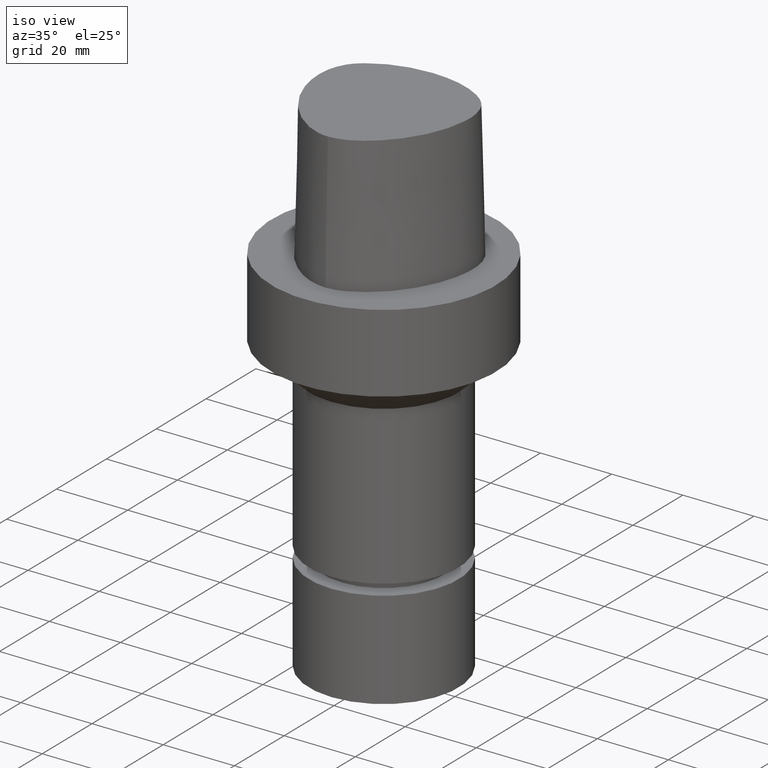
[diagram: clean part render]
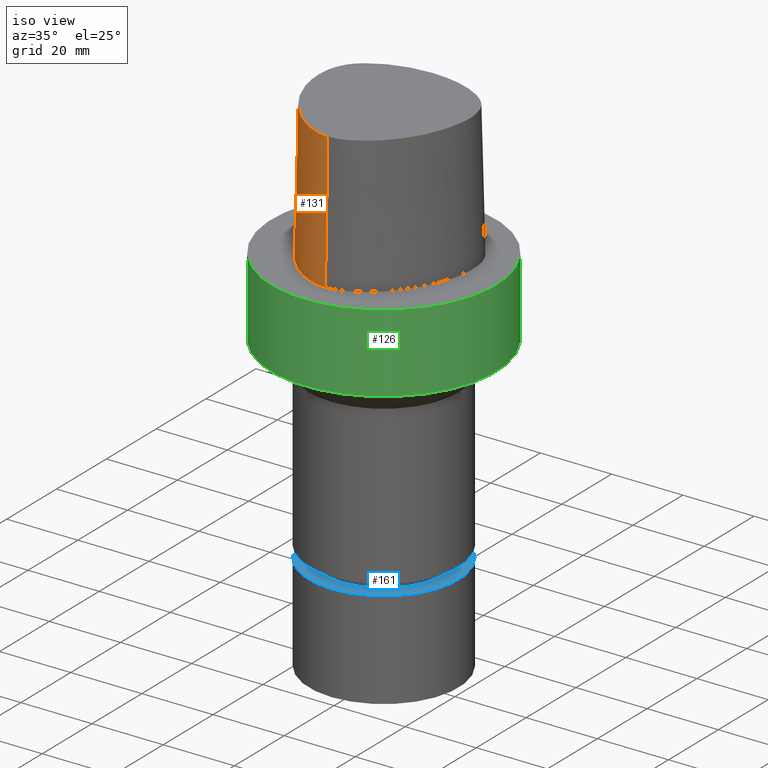
[diagram: same view with three faces highlighted in distinct colors, each labeled with its STEP entity id]
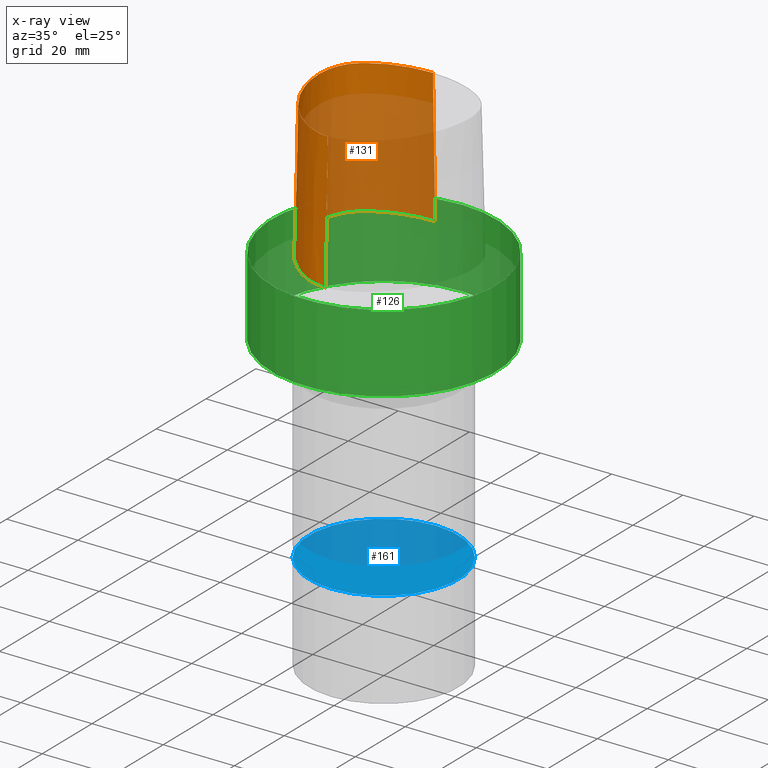
[diagram: x-ray of the same camera — body ghosted, the three highlighted faces saturated]
A machine part, iso view with three faces highlighted in distinct colors.
The next image is the same camera in x-ray (body ghosted, the three faces saturated) — at least one of them is partly hidden behind the body in this view.
Their STEP definitions:

[orange] entity #131 — the highlighted face is a freeform B-spline surface patch.
#73=EDGE_CURVE('Unnamed[1]',#192,#193,#194,.T.);
#108=EDGE_CURVE('Unnamed[1]',#193,#245,#246,.T.);
#131=ADVANCED_FACE('Unnamed[1]',(#280),#281,.T.);
#146=EDGE_CURVE('Unnamed[1]',#220,#245,#301,.T.);
#153=EDGE_CURVE('Unnamed[1]',#220,#192,#311,.T.);
#192=VERTEX_POINT('',#350);
#193=VERTEX_POINT('',#351);
#194=LINE('',#352,#353);
#220=VERTEX_POINT('',#386);
#245=VERTEX_POINT('',#501);
#246=B_SPLINE_CURVE_WITH_KNOTS('',3,(#502,#503,#504,#505,#506,#507,#508,#509,#510,#511,#512,#513,#514,#515,#516,#517,#518,#519),.UNSPECIFIED.,.F.,.F.,(4,1,1,1,1,1,1,1,1,2,1,1,1,1,4),(-6.6151339308743,-6.20168806019465,-5.78824218951501,-5.37479631883537,-4.96135044815572,-4.13445870679644,-3.30756696543715,-2.89412109475751,-2.48067522407786,-2.06722935339822,-1.65378348271857,-1.24033761203893,-0.826891741359287,-0.413445870679644,0.0),.UNSPECIFIED.);
#280=FACE_OUTER_BOUND('',#562,.T.);
#281=B_SPLINE_SURFACE_WITH_KNOTS('',3,3,((#563,#564,#565,#566),(#567,#568,#569,#570),(#571,#572,#573,#574),(#575,#576,#577,#578),(#579,#580,#581,#582),(#583,#584,#585,#586),(#587,#588,#589,#590),(#591,#592,#593,#594),(#595,#596,#597,#598),(#599,#600,#601,#602),(#603,#604,#605,#606),(#607,#608,#609,#610),(#611,#612,#613,#614),(#615,#616,#617,#618),(#619,#620,#621,#622),(#623,#624,#625,#626),(#627,#628,#629,#630),(#631,#632,#633,#634)),.UNSPECIFIED.,.F.,.F.,.F.,(4,1,1,1,1,1,1,1,1,2,1,1,1,1,4),(4,4),(-6.6151339308743,-6.20168806019465,-5.78824218951501,-5.37479631883537,-4.96135044815572,-4.13445870679644,-3.30756696543715,-2.89412109475751,-2.48067522407786,-2.06722935339822,-1.65378348271857,-1.24033761203893,-0.826891741359287,-0.413445870679644,0.0),(-3.8,0.0),.UNSPECIFIED.);
#301=LINE('',#659,#660);
#311=B_SPLINE_CURVE_WITH_KNOTS('',3,(#673,#674,#675,#676,#677,#678,#679,#680,#681,#682,#683,#684,#685,#686,#687,#688),.UNSPECIFIED.,.F.,.F.,(4,1,1,1,1,1,1,1,1,1,1,1,1,4),(0.0,0.447924670568964,0.9388024242536,1.50591409090711,2.07314340012323,2.72424957442464,3.2253501842849,3.80982102049476,4.34867996267067,4.85900173381144,5.37972031856977,6.03459825488646,6.61113557741484,6.61513393087395),.UNSPECIFIED.);
#350=CARTESIAN_POINT('',(0.038736923393866,-22.5191997536361,38.0));
#351=CARTESIAN_POINT('',(0.04359356758149,-23.4691235068931,7.78075697532443E-032));
#352=CARTESIAN_POINT('',(0.038736923393866,-22.5191997536361,38.0));
#353=VECTOR('',#737,38.0118715498723);
#386=CARTESIAN_POINT('',(-0.001218547003662,19.7276821925089,38.0));
#501=CARTESIAN_POINT('',(-0.045171994691285,20.6766009553285,1.6755590516169E-031));
#502=CARTESIAN_POINT('',(0.04359356758149,-23.4691235068931,7.78075697532443E-032));
#503=CARTESIAN_POINT('',(-1.4714994713963,-23.4767895315797,2.46519032881566E-032));
#504=CARTESIAN_POINT('',(-4.43923476371401,-22.821149804767,-4.93038065763132E-032));
#505=CARTESIAN_POINT('',(-8.35043230079961,-20.8000751253325,-9.86076131526265E-032));
#506=CARTESIAN_POINT('',(-11.744900222602,-18.1556117874078,-1.97215226305253E-031));
#507=CARTESIAN_POINT('',(-15.6989602501314,-14.0406306929147,-1.97215226305253E-031));
#508=CARTESIAN_POINT('',(-19.5352875070682,-8.00624990770787,1.97215226305253E-031));
#509=CARTESIAN_POINT('',(-21.7205626190491,-1.16081708945282,0.0));
#510=CARTESIAN_POINT('',(-22.2486616783342,4.54965558738736,0.0));
#511=CARTESIAN_POINT('',(-21.6646421256468,9.00229539124618,0.0));
#512=CARTESIAN_POINT('',(-20.3945635471922,11.7780544971003,0.0));
#513=CARTESIAN_POINT('',(-18.5925528034471,14.1980602922581,0.0));
#514=CARTESIAN_POINT('',(-16.3226584122258,16.1777748720707,0.0));
#515=CARTESIAN_POINT('',(-12.5076407874579,18.2524201541303,9.86076131526265E-032));
#516=CARTESIAN_POINT('',(-8.46776192107786,19.679114377952,9.86076131526265E-032));
#517=CARTESIAN_POINT('',(-4.23043497193604,20.487781597334,1.97215226305253E-031));
#518=CARTESIAN_POINT('',(-1.42313094248379,20.6127745766442,1.10933564796705E-031));
#519=CARTESIAN_POINT('',(-0.045171994691285,20.6766009553285,1.6755590516169E-031));
#562=EDGE_LOOP('',(#826,#827,#828,#829));
#563=CARTESIAN_POINT('',(0.038736923393866,-22.5191997536361,38.0));
#564=CARTESIAN_POINT('',(0.04035580478973,-22.8358410047159,25.3333333333066));
#565=CARTESIAN_POINT('',(0.041974686185626,-23.1524822558133,12.6666666666934));
#566=CARTESIAN_POINT('',(0.04359356758149,-23.4691235068931,7.78075697532443E-032));
#567=CARTESIAN_POINT('',(-1.33786123484754,-22.5261650259856,38.0));
#568=CARTESIAN_POINT('',(-1.38240731367927,-22.8430399310626,25.3333333333066));
#569=CARTESIAN_POINT('',(-1.42695339249092,-23.1599147815484,12.6666666666934));
#570=CARTESIAN_POINT('',(-1.4714994713963,-23.4767895315797,2.46519032881566E-032));
#571=CARTESIAN_POINT('',(-4.08909358431842,-21.9268839879558,38.0));
#572=CARTESIAN_POINT('',(-4.20580731135515,-22.2249725500078,25.3333333333066));
#573=CARTESIAN_POINT('',(-4.32252104640446,-22.5230611651922,12.6666666666934));
#574=CARTESIAN_POINT('',(-4.43923476371401,-22.821149804767,-4.93038065763132E-032));
#575=CARTESIAN_POINT('',(-7.8333083619947,-19.9973514861616,38.0));
#576=CARTESIAN_POINT('',(-8.00568301809614,-20.2649260859405,25.3333333333066));
#577=CARTESIAN_POINT('',(-8.1780576640789,-20.532500564315,12.6666666666934));
#578=CARTESIAN_POINT('',(-8.35043230079961,-20.8000751253325,-9.86076131526265E-032));
#579=CARTESIAN_POINT('',(-11.1035071147626,-17.450554957873,38.0));
#580=CARTESIAN_POINT('',(-11.3173048160562,-17.6855739222454,25.3333333333066));
#581=CARTESIAN_POINT('',(-11.5311025116181,-17.9205928617968,12.6666666666934));
#582=CARTESIAN_POINT('',(-11.744900222602,-18.1556117874078,-1.97215226305253E-031));
#583=CARTESIAN_POINT('',(-14.9379535189057,-13.461132049697,38.0));
#584=CARTESIAN_POINT('',(-15.191622410671,-13.6542981711372,25.3333333333066));
#585=CARTESIAN_POINT('',(-15.4452913389853,-13.8474645327131,12.6666666666934));
#586=CARTESIAN_POINT('',(-15.6989602501314,-14.0406306929147,-1.97215226305253E-031));
#587=CARTESIAN_POINT('',(-18.6681263017223,-7.59391757463204,38.0));
#588=CARTESIAN_POINT('',(-18.9571800800711,-7.73136168081928,25.3333333333066));
#589=CARTESIAN_POINT('',(-19.2462337287194,-7.86880572399774,12.6666666666934));
#590=CARTESIAN_POINT('',(-19.5352875070682,-8.00624990770787,1.97215226305253E-031));
#591=CARTESIAN_POINT('',(-20.7857899858339,-0.952862819790525,38.0));
#592=CARTESIAN_POINT('',(-21.0973808305434,-1.02218087467418,25.3333333333066));
#593=CARTESIAN_POINT('',(-21.408971677436,-1.09149899580772,12.6666666666934));
#594=CARTESIAN_POINT('',(-21.7205626190491,-1.16081708945282,0.0));
#595=CARTESIAN_POINT('',(-21.2911760556836,4.5469215763113,38.0));
#596=CARTESIAN_POINT('',(-21.610337904926,4.54783292082248,25.3333333333066));
#597=CARTESIAN_POINT('',(-21.9294998290918,4.54874426225691,12.6666666666934));
#598=CARTESIAN_POINT('',(-22.2486616783342,4.54965558738736,0.0));
#599=CARTESIAN_POINT('',(-20.7345309521958,8.74909381391006,38.0));
#600=CARTESIAN_POINT('',(-21.0445680426217,8.83349432450556,25.3333333333066));
#601=CARTESIAN_POINT('',(-21.3546050933631,8.91789488065068,12.6666666666934));
#602=CARTESIAN_POINT('',(-21.6646421256468,9.00229539124618,0.0));
#603=CARTESIAN_POINT('',(-19.5531512296439,11.3174844040833,38.0));
#604=CARTESIAN_POINT('',(-19.8336219699984,11.4710077674213,25.3333333333066));
#605=CARTESIAN_POINT('',(-20.1140927680763,11.6245311337623,12.6666666666934));
#606=CARTESIAN_POINT('',(-20.3945635471922,11.7780544971003,0.0));
#607=CARTESIAN_POINT('',(-17.9100913688793,13.524027510437,38.0));
#608=CARTESIAN_POINT('',(-18.1375785458768,13.7487051053655,25.3333333333066));
#609=CARTESIAN_POINT('',(-18.365065665211,13.9733826973296,12.6666666666934));
#610=CARTESIAN_POINT('',(-18.5925528034471,14.1980602922581,0.0));
#611=CARTESIAN_POINT('',(-15.7996349656398,15.3762170634413,38.0));
#612=CARTESIAN_POINT('',(-15.9739761051783,15.6434029846179,25.3333333333066));
#613=CARTESIAN_POINT('',(-16.1483172726872,15.9105889315134,12.6666666666934));
#614=CARTESIAN_POINT('',(-16.3226584122258,16.1777748720707,0.0));
#615=CARTESIAN_POINT('',(-12.1175640002064,17.3825162484012,38.0));
#616=CARTESIAN_POINT('',(-12.2475895903055,17.6724842099619,25.3333333333066));
#617=CARTESIAN_POINT('',(-12.3776152070492,17.9624521925696,12.6666666666934));
#618=CARTESIAN_POINT('',(-12.5076407874579,18.2524201541303,9.86076131526265E-032));
#619=CARTESIAN_POINT('',(-8.21761151654222,18.7588585989994,38.0));
#620=CARTESIAN_POINT('',(-8.30099497910627,19.0656105427881,25.3333333333066));
#621=CARTESIAN_POINT('',(-8.38437843913309,19.3723624535439,12.6666666666934));
#622=CARTESIAN_POINT('',(-8.46776192107786,19.679114377952,9.86076131526265E-032));
#623=CARTESIAN_POINT('',(-4.13466093881225,19.5396850837055,38.0));
#624=CARTESIAN_POINT('',(-4.16658562115465,19.8557172636973,25.3333333333066));
#625=CARTESIAN_POINT('',(-4.19851029939059,20.1717494367229,12.6666666666934));
#626=CARTESIAN_POINT('',(-4.23043497193604,20.487781597334,1.97215226305253E-031));
#627=CARTESIAN_POINT('',(-1.37917220403684,19.6638560588908,38.0));
#628=CARTESIAN_POINT('',(-1.39382511685176,19.98016223565,25.3333333333066));
#629=CARTESIAN_POINT('',(-1.40847802945569,20.296468399885,12.6666666666934));
#630=CARTESIAN_POINT('',(-1.42313094248379,20.6127745766442,1.10933564796705E-031));
#631=CARTESIAN_POINT('',(-0.001218547003662,19.7276821925089,38.0));
#632=CARTESIAN_POINT('',(-0.015869696232855,20.043988446791,25.3333333333066));
#633=CARTESIAN_POINT('',(-0.030520845462092,20.3602947010464,12.6666666666934));
#634=CARTESIAN_POINT('',(-0.045171994691285,20.6766009553285,1.6755590516169E-031));
#659=CARTESIAN_POINT('',(-0.001218547003662,19.7276821925089,38.0));
#660=VECTOR('',#848,38.0118715498723);
#673=CARTESIAN_POINT('',(-0.001218547003662,19.7276821925089,38.0));
#674=CARTESIAN_POINT('',(-1.49408492138443,19.6585333605309,38.0));
#675=CARTESIAN_POINT('',(-4.62297391420352,19.513604770166,38.0));
#676=CARTESIAN_POINT('',(-9.56160616752212,18.4291575730197,38.0));
#677=CARTESIAN_POINT('',(-14.5427684976927,16.2697452580488,38.0));
#678=CARTESIAN_POINT('',(-19.4315563551602,12.5302108980807,38.0));
#679=CARTESIAN_POINT('',(-21.306358833612,6.76352894547076,38.0));
#680=CARTESIAN_POINT('',(-21.0724946936277,0.957075236984038,38.0));
#681=CARTESIAN_POINT('',(-19.7876470880144,-4.34628503581652,38.0));
#682=CARTESIAN_POINT('',(-17.5396999600095,-9.33314444653089,38.0));
#683=CARTESIAN_POINT('',(-14.645447733857,-13.7185760345629,38.0));
#684=CARTESIAN_POINT('',(-10.7996726536643,-17.856257282137,38.0));
#685=CARTESIAN_POINT('',(-6.00479510196376,-21.2687382067675,38.0));
#686=CARTESIAN_POINT('',(-1.90747171908525,-22.5250621415864,38.0));
#687=CARTESIAN_POINT('',(0.025424107066464,-22.5192678176378,38.0));
#688=CARTESIAN_POINT('',(0.038736923394311,-22.519199753636,38.0));
#737=DIRECTION('',(0.000127766510556,-0.024990186342461,-0.999687688361864));
#826=ORIENTED_EDGE('',*,*,#108,.F.);
#827=ORIENTED_EDGE('',*,*,#73,.F.);
#828=ORIENTED_EDGE('',*,*,#153,.F.);
#829=ORIENTED_EDGE('',*,*,#146,.T.);
#848=DIRECTION('',(-0.001156308434589,0.02496374748543,-0.999687688361864));

[blue] entity #161 — the highlighted planar face has unit normal (-0, -0, 1).
#75=EDGE_CURVE('Unnamed[1]',#196,#196,#197,.T.);
#161=ADVANCED_FACE('Unnamed[1]',(#322),#323,.T.);
#196=VERTEX_POINT('',#356);
#197=CIRCLE('',#357,21.0);
#322=FACE_OUTER_BOUND('',#702,.T.);
#323=PLANE('',#703);
#356=CARTESIAN_POINT('',(4.74550634669599E-015,21.0,-77.5));
#357=AXIS2_PLACEMENT_3D('',#738,#739,#740);
#702=EDGE_LOOP('',(#868));
#703=AXIS2_PLACEMENT_3D('',#869,#870,#871);
#738=CARTESIAN_POINT('',(4.74550634669599E-015,9.49101269339199E-015,-77.5));
#739=DIRECTION('',(6.12323399573677E-017,1.22464679914735E-016,-1.0));
#740=DIRECTION('',(-1.23259516440783E-032,1.0,1.22464679914735E-016));
#868=ORIENTED_EDGE('',*,*,#75,.F.);
#869=CARTESIAN_POINT('',(4.74550634669599E-015,10.5,-77.5));
#870=DIRECTION('',(-6.12323399573677E-017,-1.22464679914735E-016,1.0));
#871=DIRECTION('',(1.23259516440783E-032,-1.0,-1.22464679914735E-016));

[green] entity #126 — the highlighted cylindrical surface (bore or boss wall) has radius 31.5 mm, axis along (0, 0, -1).
#83=EDGE_CURVE('Unnamed[1]',#209,#209,#210,.T.);
#115=EDGE_CURVE('Unnamed[1]',#256,#256,#257,.T.);
#126=ADVANCED_FACE('Unnamed[1]',(#272,#273),#274,.T.);
#209=VERTEX_POINT('',#372);
#210=CIRCLE('',#373,31.5);
#256=VERTEX_POINT('',#532);
#257=CIRCLE('',#533,31.5);
#272=FACE_BOUND('',#552,.T.);
#273=FACE_BOUND('',#553,.T.);
#274=CYLINDRICAL_SURFACE('',#554,31.5);
#372=CARTESIAN_POINT('',(-3.88267476788467E-031,31.5,3.85763741731416E-015));
#373=AXIS2_PLACEMENT_3D('',#755,#756,#757);
#532=CARTESIAN_POINT('',(1.34711147906212E-015,31.5,-22.0000000000006));
#533=AXIS2_PLACEMENT_3D('',#799,#800,#801);
#552=EDGE_LOOP('',(#817));
#553=EDGE_LOOP('',(#818));
#554=AXIS2_PLACEMENT_3D('',#819,#820,#821);
#755=CARTESIAN_POINT('',(0.0,0.0,0.0));
#756=DIRECTION('',(6.12323399573677E-017,1.22464679914735E-016,-1.0));
#757=DIRECTION('',(-1.23259516440783E-032,1.0,1.22464679914735E-016));
#799=CARTESIAN_POINT('',(1.34711147906212E-015,2.69422295812425E-015,-22.0000000000006));
#800=DIRECTION('',(6.12323399573677E-017,1.22464679914735E-016,-1.0));
#801=DIRECTION('',(-1.23259516440783E-032,1.0,1.22464679914735E-016));
#817=ORIENTED_EDGE('',*,*,#115,.F.);
#818=ORIENTED_EDGE('',*,*,#83,.T.);
#819=CARTESIAN_POINT('',(6.73555739531062E-016,1.34711147906212E-015,-11.0000000000003));
#820=DIRECTION('',(6.12323399573677E-017,1.22464679914735E-016,-1.0));
#821=DIRECTION('',(-1.23259516440783E-032,1.0,1.22464679914735E-016));